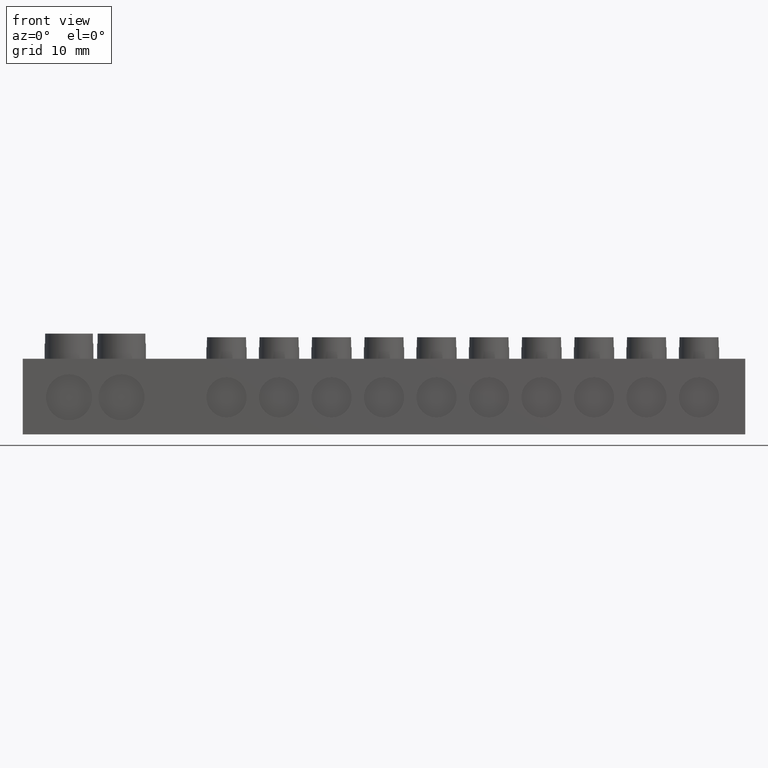
[diagram: clean part render]
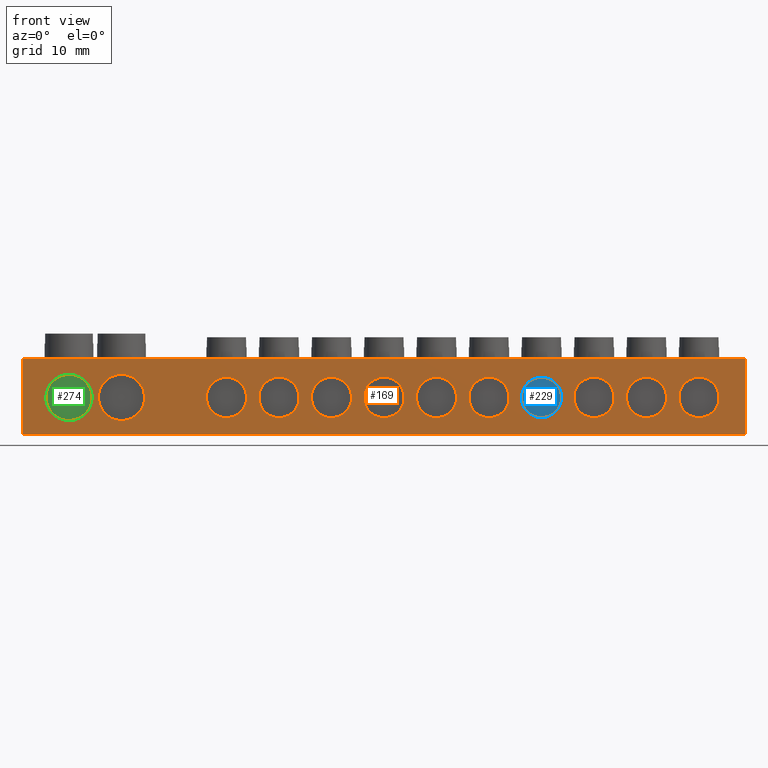
[diagram: same view with three faces highlighted in distinct colors, each labeled with its STEP entity id]
A machine part, front view with three faces highlighted in distinct colors.
Their STEP definitions:

[orange] entity #169 — the highlighted planar face has unit normal (0, 1, 0).
#3 = EDGE_CURVE ( 'NONE', #3433, #3369, #8008, .T. ) ;
#8 = EDGE_CURVE ( 'NONE', #3347, #3352, #8016, .T. ) ;
#15 = EDGE_CURVE ( 'NONE', #3898, #3873, #8014, .T. ) ;
#19 = EDGE_CURVE ( 'NONE', #7013, #7672, #523, .T. ) ;
#28 = EDGE_CURVE ( 'NONE', #7020, #7686, #548, .T. ) ;
#29 = EDGE_CURVE ( 'NONE', #3917, #3869, #7487, .T. ) ;
#32 = EDGE_CURVE ( 'NONE', #7672, #7020, #571, .T. ) ;
#37 = EDGE_CURVE ( 'NONE', #7686, #7013, #561, .T. ) ;
#40 = EDGE_CURVE ( 'NONE', #3416, #3361, #7490, .T. ) ;
#52 = EDGE_CURVE ( 'NONE', #3364, #3394, #7514, .T. ) ;
#53 = EDGE_CURVE ( 'NONE', #3349, #3424, #7479, .T. ) ;
#56 = EDGE_CURVE ( 'NONE', #3367, #3402, #7544, .T. ) ;
#62 = EDGE_CURVE ( 'NONE', #3396, #3415, #7571, .T. ) ;
#68 = EDGE_CURVE ( 'NONE', #3384, #3365, #7622, .T. ) ;
#80 = EDGE_CURVE ( 'NONE', #3393, #3440, #7615, .T. ) ;
#103 = EDGE_CURVE ( 'NONE', #3403, #3463, #7700, .T. ) ;
#169 = ADVANCED_FACE ( 'NONE', ( #1156, #1146, #1134, #1137, #1140, #1157, #1130, #1135, #1117, #1127, #1142, #1145, #1147 ), #1149, .F. ) ;
#439 = EDGE_LOOP ( 'NONE', ( #3555, #3558 ) ) ;
#440 = EDGE_LOOP ( 'NONE', ( #3551, #3538, #3537, #3554 ) ) ;
#457 = EDGE_LOOP ( 'NONE', ( #3592, #3591 ) ) ;
#475 = DIRECTION ( 'NONE',  ( 0.0000000000000000000, 0.0000000000000000000, -1.000000000000000000 ) ) ;
#476 = DIRECTION ( 'NONE',  ( 0.0000000000000000000, 0.0000000000000000000, -1.000000000000000000 ) ) ;
#480 = DIRECTION ( 'NONE',  ( -0.0000000000000000000, -1.000000000000000000, -0.0000000000000000000 ) ) ;
#485 = DIRECTION ( 'NONE',  ( -0.0000000000000000000, -1.000000000000000000, -0.0000000000000000000 ) ) ;
#492 = CARTESIAN_POINT ( 'NONE',  ( 5.275000000000000400, 0.0000000000000000000, 4.399999999999999500 ) ) ;
#495 = DIRECTION ( 'NONE',  ( -0.0000000000000000000, -1.000000000000000000, -0.0000000000000000000 ) ) ;
#496 = DIRECTION ( 'NONE',  ( 0.0000000000000000000, 0.0000000000000000000, -1.000000000000000000 ) ) ;
#502 = CARTESIAN_POINT ( 'NONE',  ( 74.02500000000000600, 0.0000000000000000000, 4.399999999999984400 ) ) ;
#507 = CARTESIAN_POINT ( 'NONE',  ( 67.77500000000000600, 0.0000000000000000000, 4.399999999999970200 ) ) ;
#511 = DIRECTION ( 'NONE',  ( 0.0000000000000000000, 0.0000000000000000000, -1.000000000000000000 ) ) ;
#514 = DIRECTION ( 'NONE',  ( 0.0000000000000000000, 0.0000000000000000000, -1.000000000000000000 ) ) ;
#515 = DIRECTION ( 'NONE',  ( -0.0000000000000000000, -1.000000000000000000, -0.0000000000000000000 ) ) ;
#516 = CARTESIAN_POINT ( 'NONE',  ( 11.52500000000000000, 0.0000000000000000000, 4.399999999999999500 ) ) ;
#523 = LINE ( 'NONE', #530, #8013 ) ;
#530 = CARTESIAN_POINT ( 'NONE',  ( -0.2250000000000000100, 0.0000000000000000000, 9.000000000000001800 ) ) ;
#533 = DIRECTION ( 'NONE',  ( 0.0000000000000000000, 0.0000000000000000000, 1.000000000000000000 ) ) ;
#548 = LINE ( 'NONE', #550, #7481 ) ;
#550 = CARTESIAN_POINT ( 'NONE',  ( 85.77500000000000600, 0.0000000000000000000, 9.000000000000001800 ) ) ;
#557 = CARTESIAN_POINT ( 'NONE',  ( 80.27500000000002000, 0.0000000000000000000, 4.399999999999999500 ) ) ;
#559 = CARTESIAN_POINT ( 'NONE',  ( 0.0000000000000000000, 0.0000000000000000000, 9.000000000000001800 ) ) ;
#560 = CARTESIAN_POINT ( 'NONE',  ( 0.0000000000000000000, 0.0000000000000000000, 0.0000000000000000000 ) ) ;
#561 = LINE ( 'NONE', #560, #7498 ) ;
#571 = LINE ( 'NONE', #559, #7477 ) ;
#577 = DIRECTION ( 'NONE',  ( 0.0000000000000000000, 0.0000000000000000000, -1.000000000000000000 ) ) ;
#585 = DIRECTION ( 'NONE',  ( -1.000000000000000000, 0.0000000000000000000, -0.0000000000000000000 ) ) ;
#587 = DIRECTION ( 'NONE',  ( 1.000000000000000000, 0.0000000000000000000, -0.0000000000000000000 ) ) ;
#593 = DIRECTION ( 'NONE',  ( -0.0000000000000000000, -1.000000000000000000, -0.0000000000000000000 ) ) ;
#600 = DIRECTION ( 'NONE',  ( -0.0000000000000000000, -1.000000000000000000, -0.0000000000000000000 ) ) ;
#605 = DIRECTION ( 'NONE',  ( 0.0000000000000000000, 0.0000000000000000000, -1.000000000000000000 ) ) ;
#607 = CARTESIAN_POINT ( 'NONE',  ( 30.27500000000000900, 0.0000000000000000000, 4.399999999999883100 ) ) ;
#608 = DIRECTION ( 'NONE',  ( -0.0000000000000000000, -1.000000000000000000, -0.0000000000000000000 ) ) ;
#610 = CARTESIAN_POINT ( 'NONE',  ( 36.52500000000000600, 0.0000000000000000000, 4.399999999999898200 ) ) ;
#631 = DIRECTION ( 'NONE',  ( 0.0000000000000000000, 0.0000000000000000000, -1.000000000000000000 ) ) ;
#637 = DIRECTION ( 'NONE',  ( -0.0000000000000000000, -1.000000000000000000, -0.0000000000000000000 ) ) ;
#643 = DIRECTION ( 'NONE',  ( 0.0000000000000000000, 0.0000000000000000000, -1.000000000000000000 ) ) ;
#649 = CARTESIAN_POINT ( 'NONE',  ( 49.02500000000000600, 0.0000000000000000000, 4.399999999999926600 ) ) ;
#653 = CARTESIAN_POINT ( 'NONE',  ( 42.77500000000000600, 0.0000000000000000000, 4.399999999999911500 ) ) ;
#655 = DIRECTION ( 'NONE',  ( -0.0000000000000000000, -1.000000000000000000, -0.0000000000000000000 ) ) ;
#657 = DIRECTION ( 'NONE',  ( 0.0000000000000000000, 0.0000000000000000000, -1.000000000000000000 ) ) ;
#666 = CARTESIAN_POINT ( 'NONE',  ( 55.27500000000000600, 0.0000000000000000000, 4.399999999999940800 ) ) ;
#683 = DIRECTION ( 'NONE',  ( 0.0000000000000000000, 0.0000000000000000000, -1.000000000000000000 ) ) ;
#700 = DIRECTION ( 'NONE',  ( -0.0000000000000000000, -1.000000000000000000, -0.0000000000000000000 ) ) ;
#729 = DIRECTION ( 'NONE',  ( 0.0000000000000000000, 0.0000000000000000000, -1.000000000000000000 ) ) ;
#731 = DIRECTION ( 'NONE',  ( -0.0000000000000000000, -1.000000000000000000, -0.0000000000000000000 ) ) ;
#744 = CARTESIAN_POINT ( 'NONE',  ( 61.52500000000001300, 0.0000000000000000000, 4.399999999999955900 ) ) ;
#811 = DIRECTION ( 'NONE',  ( 0.0000000000000000000, 0.0000000000000000000, -1.000000000000000000 ) ) ;
#814 = CARTESIAN_POINT ( 'NONE',  ( 24.02500000000001300, 0.0000000000000000000, 4.399999999999868000 ) ) ;
#816 = DIRECTION ( 'NONE',  ( -0.0000000000000000000, -1.000000000000000000, -0.0000000000000000000 ) ) ;
#1111 = DIRECTION ( 'NONE',  ( 0.0000000000000000000, 1.000000000000000000, 0.0000000000000000000 ) ) ;
#1117 = FACE_BOUND ( 'NONE', #1477, .T. ) ;
#1127 = FACE_BOUND ( 'NONE', #1427, .T. ) ;
#1130 = FACE_BOUND ( 'NONE', #1461, .T. ) ;
#1134 = FACE_BOUND ( 'NONE', #1451, .T. ) ;
#1135 = FACE_BOUND ( 'NONE', #1473, .T. ) ;
#1137 = FACE_BOUND ( 'NONE', #1462, .T. ) ;
#1140 = FACE_BOUND ( 'NONE', #1428, .T. ) ;
#1142 = FACE_BOUND ( 'NONE', #1455, .T. ) ;
#1145 = FACE_BOUND ( 'NONE', #1466, .T. ) ;
#1146 = FACE_BOUND ( 'NONE', #457, .T. ) ;
#1147 = FACE_BOUND ( 'NONE', #1454, .T. ) ;
#1149 = PLANE ( 'NONE',  #7775 ) ;
#1150 = CARTESIAN_POINT ( 'NONE',  ( 0.0000000000000000000, 0.0000000000000000000, 9.000000000000001800 ) ) ;
#1155 = DIRECTION ( 'NONE',  ( 0.0000000000000000000, -0.0000000000000000000, 1.000000000000000000 ) ) ;
#1156 = FACE_OUTER_BOUND ( 'NONE', #440, .T. ) ;
#1157 = FACE_BOUND ( 'NONE', #439, .T. ) ;
#1427 = EDGE_LOOP ( 'NONE', ( #3568, #3426 ) ) ;
#1428 = EDGE_LOOP ( 'NONE', ( #3562, #3544 ) ) ;
#1451 = EDGE_LOOP ( 'NONE', ( #3598, #3553 ) ) ;
#1454 = EDGE_LOOP ( 'NONE', ( #3406, #3442 ) ) ;
#1455 = EDGE_LOOP ( 'NONE', ( #3427, #3428 ) ) ;
#1461 = EDGE_LOOP ( 'NONE', ( #3596, #3593 ) ) ;
#1462 = EDGE_LOOP ( 'NONE', ( #3580, #3543 ) ) ;
#1466 = EDGE_LOOP ( 'NONE', ( #3409, #3444 ) ) ;
#1473 = EDGE_LOOP ( 'NONE', ( #3566, #3599 ) ) ;
#1477 = EDGE_LOOP ( 'NONE', ( #3570, #3539 ) ) ;
#2038 = CARTESIAN_POINT ( 'NONE',  ( 85.77500000000000600, 0.0000000000000000000, 9.000000000000001800 ) ) ;
#2232 = DIRECTION ( 'NONE',  ( -0.0000000000000000000, -1.000000000000000000, -0.0000000000000000000 ) ) ;
#2233 = DIRECTION ( 'NONE',  ( 0.0000000000000000000, 0.0000000000000000000, -1.000000000000000000 ) ) ;
#2246 = CARTESIAN_POINT ( 'NONE',  ( 36.52500000000000600, 0.0000000000000000000, 4.399999999999898200 ) ) ;
#2249 = DIRECTION ( 'NONE',  ( -0.0000000000000000000, -1.000000000000000000, -0.0000000000000000000 ) ) ;
#2250 = CARTESIAN_POINT ( 'NONE',  ( 5.275000000000000400, 0.0000000000000000000, 4.399999999999999500 ) ) ;
#2254 = DIRECTION ( 'NONE',  ( 0.0000000000000000000, 0.0000000000000000000, -1.000000000000000000 ) ) ;
#2256 = DIRECTION ( 'NONE',  ( -0.0000000000000000000, -1.000000000000000000, -0.0000000000000000000 ) ) ;
#2257 = CARTESIAN_POINT ( 'NONE',  ( 42.77500000000000600, 0.0000000000000000000, 4.399999999999911500 ) ) ;
#2258 = DIRECTION ( 'NONE',  ( 0.0000000000000000000, 0.0000000000000000000, -1.000000000000000000 ) ) ;
#2289 = DIRECTION ( 'NONE',  ( -0.0000000000000000000, -1.000000000000000000, -0.0000000000000000000 ) ) ;
#2290 = CARTESIAN_POINT ( 'NONE',  ( 74.02500000000000600, 0.0000000000000000000, 4.399999999999984400 ) ) ;
#2293 = DIRECTION ( 'NONE',  ( 0.0000000000000000000, 0.0000000000000000000, -1.000000000000000000 ) ) ;
#2299 = CARTESIAN_POINT ( 'NONE',  ( 49.02500000000000600, 0.0000000000000000000, 4.399999999999926600 ) ) ;
#2305 = DIRECTION ( 'NONE',  ( 0.0000000000000000000, 0.0000000000000000000, -1.000000000000000000 ) ) ;
#2311 = CARTESIAN_POINT ( 'NONE',  ( 67.77500000000000600, 0.0000000000000000000, 4.399999999999970200 ) ) ;
#2312 = DIRECTION ( 'NONE',  ( 0.0000000000000000000, 0.0000000000000000000, -1.000000000000000000 ) ) ;
#2318 = DIRECTION ( 'NONE',  ( -0.0000000000000000000, -1.000000000000000000, -0.0000000000000000000 ) ) ;
#2319 = CARTESIAN_POINT ( 'NONE',  ( -0.2250000000000000100, 0.0000000000000000000, 0.0000000000000000000 ) ) ;
#2323 = CARTESIAN_POINT ( 'NONE',  ( 80.27500000000002000, 0.0000000000000000000, 4.399999999999999500 ) ) ;
#2324 = DIRECTION ( 'NONE',  ( 0.0000000000000000000, 0.0000000000000000000, -1.000000000000000000 ) ) ;
#2325 = DIRECTION ( 'NONE',  ( -0.0000000000000000000, -1.000000000000000000, -0.0000000000000000000 ) ) ;
#2329 = DIRECTION ( 'NONE',  ( -0.0000000000000000000, -1.000000000000000000, -0.0000000000000000000 ) ) ;
#2384 = AXIS2_PLACEMENT_3D ( 'NONE', #2246, #2249, #2233 ) ;
#2387 = CIRCLE ( 'NONE', #2426, 2.400000000000000800 ) ;
#2389 = AXIS2_PLACEMENT_3D ( 'NONE', #2299, #2289, #2293 ) ;
#2390 = AXIS2_PLACEMENT_3D ( 'NONE', #2250, #2232, #2254 ) ;
#2397 = CIRCLE ( 'NONE', #2390, 2.749999999999998200 ) ;
#2404 = CIRCLE ( 'NONE', #2384, 2.400000000000000800 ) ;
#2409 = CIRCLE ( 'NONE', #2423, 2.400000000000000800 ) ;
#2410 = CIRCLE ( 'NONE', #2418, 2.400000000000000800 ) ;
#2411 = AXIS2_PLACEMENT_3D ( 'NONE', #2290, #2318, #2305 ) ;
#2414 = CIRCLE ( 'NONE', #2389, 2.400000000000000800 ) ;
#2418 = AXIS2_PLACEMENT_3D ( 'NONE', #2257, #2256, #2258 ) ;
#2423 = AXIS2_PLACEMENT_3D ( 'NONE', #2323, #2329, #2324 ) ;
#2426 = AXIS2_PLACEMENT_3D ( 'NONE', #2311, #2325, #2312 ) ;
#2428 = CIRCLE ( 'NONE', #2411, 2.400000000000000800 ) ;
#2815 = CIRCLE ( 'NONE', #2844, 2.400000000000000800 ) ;
#2824 = CIRCLE ( 'NONE', #2870, 2.749999999999998200 ) ;
#2826 = CIRCLE ( 'NONE', #2852, 2.400000000000000800 ) ;
#2844 = AXIS2_PLACEMENT_3D ( 'NONE', #5308, #5280, #5311 ) ;
#2852 = AXIS2_PLACEMENT_3D ( 'NONE', #6171, #6189, #6162 ) ;
#2870 = AXIS2_PLACEMENT_3D ( 'NONE', #5299, #5305, #5291 ) ;
#2894 = CIRCLE ( 'NONE', #2914, 2.400000000000007900 ) ;
#2896 = CIRCLE ( 'NONE', #2900, 2.400000000000000800 ) ;
#2900 = AXIS2_PLACEMENT_3D ( 'NONE', #6234, #6201, #6225 ) ;
#2914 = AXIS2_PLACEMENT_3D ( 'NONE', #6191, #6228, #6197 ) ;
#3006 = EDGE_CURVE ( 'NONE', #3463, #3403, #2815, .T. ) ;
#3007 = EDGE_CURVE ( 'NONE', #3869, #3917, #2824, .T. ) ;
#3041 = EDGE_CURVE ( 'NONE', #3394, #3364, #2826, .T. ) ;
#3051 = EDGE_CURVE ( 'NONE', #3365, #3384, #2896, .T. ) ;
#3052 = EDGE_CURVE ( 'NONE', #3440, #3393, #2894, .T. ) ;
#3347 = VERTEX_POINT ( 'NONE', #6355 ) ;
#3349 = VERTEX_POINT ( 'NONE', #6373 ) ;
#3352 = VERTEX_POINT ( 'NONE', #6372 ) ;
#3361 = VERTEX_POINT ( 'NONE', #6350 ) ;
#3364 = VERTEX_POINT ( 'NONE', #6345 ) ;
#3365 = VERTEX_POINT ( 'NONE', #6333 ) ;
#3367 = VERTEX_POINT ( 'NONE', #6369 ) ;
#3369 = VERTEX_POINT ( 'NONE', #6334 ) ;
#3384 = VERTEX_POINT ( 'NONE', #6347 ) ;
#3393 = VERTEX_POINT ( 'NONE', #6357 ) ;
#3394 = VERTEX_POINT ( 'NONE', #6367 ) ;
#3396 = VERTEX_POINT ( 'NONE', #6368 ) ;
#3402 = VERTEX_POINT ( 'NONE', #6387 ) ;
#3403 = VERTEX_POINT ( 'NONE', #6442 ) ;
#3406 = ORIENTED_EDGE ( 'NONE', *, *, #103, .F. ) ;
#3409 = ORIENTED_EDGE ( 'NONE', *, *, #52, .F. ) ;
#3415 = VERTEX_POINT ( 'NONE', #6446 ) ;
#3416 = VERTEX_POINT ( 'NONE', #6448 ) ;
#3424 = VERTEX_POINT ( 'NONE', #6425 ) ;
#3426 = ORIENTED_EDGE ( 'NONE', *, *, #6128, .F. ) ;
#3427 = ORIENTED_EDGE ( 'NONE', *, *, #53, .F. ) ;
#3428 = ORIENTED_EDGE ( 'NONE', *, *, #6125, .F. ) ;
#3433 = VERTEX_POINT ( 'NONE', #6412 ) ;
#3440 = VERTEX_POINT ( 'NONE', #6402 ) ;
#3442 = ORIENTED_EDGE ( 'NONE', *, *, #3006, .F. ) ;
#3444 = ORIENTED_EDGE ( 'NONE', *, *, #3041, .F. ) ;
#3463 = VERTEX_POINT ( 'NONE', #6434 ) ;
#3537 = ORIENTED_EDGE ( 'NONE', *, *, #19, .F. ) ;
#3538 = ORIENTED_EDGE ( 'NONE', *, *, #32, .F. ) ;
#3539 = ORIENTED_EDGE ( 'NONE', *, *, #6142, .F. ) ;
#3543 = ORIENTED_EDGE ( 'NONE', *, *, #6139, .F. ) ;
#3544 = ORIENTED_EDGE ( 'NONE', *, *, #6140, .F. ) ;
#3551 = ORIENTED_EDGE ( 'NONE', *, *, #28, .F. ) ;
#3553 = ORIENTED_EDGE ( 'NONE', *, *, #3007, .F. ) ;
#3554 = ORIENTED_EDGE ( 'NONE', *, *, #37, .F. ) ;
#3555 = ORIENTED_EDGE ( 'NONE', *, *, #3, .F. ) ;
#3558 = ORIENTED_EDGE ( 'NONE', *, *, #6143, .F. ) ;
#3562 = ORIENTED_EDGE ( 'NONE', *, *, #8, .F. ) ;
#3566 = ORIENTED_EDGE ( 'NONE', *, *, #68, .F. ) ;
#3568 = ORIENTED_EDGE ( 'NONE', *, *, #56, .F. ) ;
#3570 = ORIENTED_EDGE ( 'NONE', *, *, #62, .F. ) ;
#3580 = ORIENTED_EDGE ( 'NONE', *, *, #40, .F. ) ;
#3591 = ORIENTED_EDGE ( 'NONE', *, *, #6123, .F. ) ;
#3592 = ORIENTED_EDGE ( 'NONE', *, *, #15, .F. ) ;
#3593 = ORIENTED_EDGE ( 'NONE', *, *, #3052, .F. ) ;
#3596 = ORIENTED_EDGE ( 'NONE', *, *, #80, .F. ) ;
#3598 = ORIENTED_EDGE ( 'NONE', *, *, #29, .F. ) ;
#3599 = ORIENTED_EDGE ( 'NONE', *, *, #3051, .F. ) ;
#3869 = VERTEX_POINT ( 'NONE', #6503 ) ;
#3873 = VERTEX_POINT ( 'NONE', #6479 ) ;
#3898 = VERTEX_POINT ( 'NONE', #6421 ) ;
#3917 = VERTEX_POINT ( 'NONE', #6472 ) ;
#5280 = DIRECTION ( 'NONE',  ( -0.0000000000000000000, -1.000000000000000000, -0.0000000000000000000 ) ) ;
#5291 = DIRECTION ( 'NONE',  ( 0.0000000000000000000, 0.0000000000000000000, -1.000000000000000000 ) ) ;
#5299 = CARTESIAN_POINT ( 'NONE',  ( 11.52500000000000000, 0.0000000000000000000, 4.399999999999999500 ) ) ;
#5305 = DIRECTION ( 'NONE',  ( -0.0000000000000000000, -1.000000000000000000, -0.0000000000000000000 ) ) ;
#5308 = CARTESIAN_POINT ( 'NONE',  ( 24.02500000000001300, 0.0000000000000000000, 4.399999999999868000 ) ) ;
#5311 = DIRECTION ( 'NONE',  ( 0.0000000000000000000, 0.0000000000000000000, -1.000000000000000000 ) ) ;
#5827 = CARTESIAN_POINT ( 'NONE',  ( 85.77500000000000600, 0.0000000000000000000, 0.0000000000000000000 ) ) ;
#5829 = CARTESIAN_POINT ( 'NONE',  ( -0.2250000000000000100, 0.0000000000000000000, 9.000000000000001800 ) ) ;
#6123 = EDGE_CURVE ( 'NONE', #3873, #3898, #2397, .T. ) ;
#6125 = EDGE_CURVE ( 'NONE', #3424, #3349, #2404, .T. ) ;
#6128 = EDGE_CURVE ( 'NONE', #3402, #3367, #2410, .T. ) ;
#6139 = EDGE_CURVE ( 'NONE', #3361, #3416, #2409, .T. ) ;
#6140 = EDGE_CURVE ( 'NONE', #3352, #3347, #2428, .T. ) ;
#6142 = EDGE_CURVE ( 'NONE', #3415, #3396, #2414, .T. ) ;
#6143 = EDGE_CURVE ( 'NONE', #3369, #3433, #2387, .T. ) ;
#6162 = DIRECTION ( 'NONE',  ( 0.0000000000000000000, 0.0000000000000000000, -1.000000000000000000 ) ) ;
#6171 = CARTESIAN_POINT ( 'NONE',  ( 30.27500000000000900, 0.0000000000000000000, 4.399999999999883100 ) ) ;
#6189 = DIRECTION ( 'NONE',  ( -0.0000000000000000000, -1.000000000000000000, -0.0000000000000000000 ) ) ;
#6191 = CARTESIAN_POINT ( 'NONE',  ( 61.52500000000001300, 0.0000000000000000000, 4.399999999999955900 ) ) ;
#6197 = DIRECTION ( 'NONE',  ( 0.0000000000000000000, 0.0000000000000000000, -1.000000000000000000 ) ) ;
#6201 = DIRECTION ( 'NONE',  ( -0.0000000000000000000, -1.000000000000000000, -0.0000000000000000000 ) ) ;
#6225 = DIRECTION ( 'NONE',  ( 0.0000000000000000000, 0.0000000000000000000, -1.000000000000000000 ) ) ;
#6228 = DIRECTION ( 'NONE',  ( -0.0000000000000000000, -1.000000000000000000, -0.0000000000000000000 ) ) ;
#6234 = CARTESIAN_POINT ( 'NONE',  ( 55.27500000000000600, 0.0000000000000000000, 4.399999999999940800 ) ) ;
#6333 = CARTESIAN_POINT ( 'NONE',  ( 55.27500000000000600, 0.0000000000000000000, 6.799999999999941200 ) ) ;
#6334 = CARTESIAN_POINT ( 'NONE',  ( 67.77500000000000600, 0.0000000000000000000, 6.799999999999971400 ) ) ;
#6345 = CARTESIAN_POINT ( 'NONE',  ( 30.27500000000000900, 0.0000000000000000000, 1.999999999999882500 ) ) ;
#6347 = CARTESIAN_POINT ( 'NONE',  ( 55.27500000000000600, 0.0000000000000000000, 1.999999999999940700 ) ) ;
#6350 = CARTESIAN_POINT ( 'NONE',  ( 80.27500000000002000, 0.0000000000000000000, 6.800000000000000700 ) ) ;
#6355 = CARTESIAN_POINT ( 'NONE',  ( 74.02500000000000600, 0.0000000000000000000, 1.999999999999984000 ) ) ;
#6357 = CARTESIAN_POINT ( 'NONE',  ( 61.52500000000001300, 0.0000000000000000000, 1.999999999999948000 ) ) ;
#6367 = CARTESIAN_POINT ( 'NONE',  ( 30.27500000000000900, 0.0000000000000000000, 6.799999999999884400 ) ) ;
#6368 = CARTESIAN_POINT ( 'NONE',  ( 49.02500000000000600, 0.0000000000000000000, 1.999999999999925800 ) ) ;
#6369 = CARTESIAN_POINT ( 'NONE',  ( 42.77500000000000600, 0.0000000000000000000, 1.999999999999911200 ) ) ;
#6372 = CARTESIAN_POINT ( 'NONE',  ( 74.02500000000000600, 0.0000000000000000000, 6.799999999999984700 ) ) ;
#6373 = CARTESIAN_POINT ( 'NONE',  ( 36.52500000000000600, 0.0000000000000000000, 1.999999999999897200 ) ) ;
#6387 = CARTESIAN_POINT ( 'NONE',  ( 42.77500000000000600, 0.0000000000000000000, 6.799999999999911900 ) ) ;
#6402 = CARTESIAN_POINT ( 'NONE',  ( 61.52500000000001300, 0.0000000000000000000, 6.799999999999964300 ) ) ;
#6412 = CARTESIAN_POINT ( 'NONE',  ( 67.77500000000000600, 0.0000000000000000000, 1.999999999999969400 ) ) ;
#6421 = CARTESIAN_POINT ( 'NONE',  ( 5.275000000000000400, 0.0000000000000000000, 1.650000000000001200 ) ) ;
#6425 = CARTESIAN_POINT ( 'NONE',  ( 36.52500000000000600, 0.0000000000000000000, 6.799999999999898600 ) ) ;
#6434 = CARTESIAN_POINT ( 'NONE',  ( 24.02500000000001300, 0.0000000000000000000, 6.799999999999868400 ) ) ;
#6442 = CARTESIAN_POINT ( 'NONE',  ( 24.02500000000001300, 0.0000000000000000000, 1.999999999999867700 ) ) ;
#6446 = CARTESIAN_POINT ( 'NONE',  ( 49.02500000000000600, 0.0000000000000000000, 6.799999999999927900 ) ) ;
#6448 = CARTESIAN_POINT ( 'NONE',  ( 80.27500000000002000, 0.0000000000000000000, 1.999999999999998700 ) ) ;
#6472 = CARTESIAN_POINT ( 'NONE',  ( 11.52500000000000000, 0.0000000000000000000, 1.650000000000001200 ) ) ;
#6479 = CARTESIAN_POINT ( 'NONE',  ( 5.275000000000000400, 0.0000000000000000000, 7.149999999999997700 ) ) ;
#6503 = CARTESIAN_POINT ( 'NONE',  ( 11.52500000000000000, 0.0000000000000000000, 7.149999999999997700 ) ) ;
#7013 = VERTEX_POINT ( 'NONE', #2319 ) ;
#7020 = VERTEX_POINT ( 'NONE', #2038 ) ;
#7477 = VECTOR ( 'NONE', #587, 1000.000000000000000 ) ;
#7479 = CIRCLE ( 'NONE', #7501, 2.400000000000000800 ) ;
#7481 = VECTOR ( 'NONE', #514, 1000.000000000000000 ) ;
#7487 = CIRCLE ( 'NONE', #7506, 2.749999999999998200 ) ;
#7490 = CIRCLE ( 'NONE', #7546, 2.400000000000000800 ) ;
#7497 = AXIS2_PLACEMENT_3D ( 'NONE', #653, #655, #643 ) ;
#7498 = VECTOR ( 'NONE', #585, 1000.000000000000000 ) ;
#7501 = AXIS2_PLACEMENT_3D ( 'NONE', #610, #600, #605 ) ;
#7504 = AXIS2_PLACEMENT_3D ( 'NONE', #607, #608, #631 ) ;
#7506 = AXIS2_PLACEMENT_3D ( 'NONE', #516, #515, #511 ) ;
#7514 = CIRCLE ( 'NONE', #7504, 2.400000000000000800 ) ;
#7544 = CIRCLE ( 'NONE', #7497, 2.400000000000000800 ) ;
#7546 = AXIS2_PLACEMENT_3D ( 'NONE', #557, #593, #577 ) ;
#7571 = CIRCLE ( 'NONE', #7638, 2.400000000000000800 ) ;
#7585 = AXIS2_PLACEMENT_3D ( 'NONE', #744, #731, #729 ) ;
#7604 = AXIS2_PLACEMENT_3D ( 'NONE', #666, #700, #683 ) ;
#7615 = CIRCLE ( 'NONE', #7585, 2.400000000000007900 ) ;
#7622 = CIRCLE ( 'NONE', #7604, 2.400000000000000800 ) ;
#7638 = AXIS2_PLACEMENT_3D ( 'NONE', #649, #637, #657 ) ;
#7672 = VERTEX_POINT ( 'NONE', #5829 ) ;
#7686 = VERTEX_POINT ( 'NONE', #5827 ) ;
#7700 = CIRCLE ( 'NONE', #7746, 2.400000000000000800 ) ;
#7746 = AXIS2_PLACEMENT_3D ( 'NONE', #814, #816, #811 ) ;
#7775 = AXIS2_PLACEMENT_3D ( 'NONE', #1150, #1111, #1155 ) ;
#8005 = AXIS2_PLACEMENT_3D ( 'NONE', #507, #485, #476 ) ;
#8008 = CIRCLE ( 'NONE', #8005, 2.400000000000000800 ) ;
#8012 = AXIS2_PLACEMENT_3D ( 'NONE', #492, #495, #475 ) ;
#8013 = VECTOR ( 'NONE', #533, 1000.000000000000000 ) ;
#8014 = CIRCLE ( 'NONE', #8012, 2.749999999999998200 ) ;
#8016 = CIRCLE ( 'NONE', #8031, 2.400000000000000800 ) ;
#8031 = AXIS2_PLACEMENT_3D ( 'NONE', #502, #480, #496 ) ;

[blue] entity #229 — the highlighted planar face has unit normal (0, -1, 0).
#72 = EDGE_CURVE ( 'NONE', #3404, #3391, #7609, .T. ) ;
#229 = ADVANCED_FACE ( 'NONE', ( #5390 ), #5393, .T. ) ;
#680 = DIRECTION ( 'NONE',  ( 0.0000000000000000000, 0.0000000000000000000, -1.000000000000000000 ) ) ;
#681 = DIRECTION ( 'NONE',  ( -0.0000000000000000000, -1.000000000000000000, -0.0000000000000000000 ) ) ;
#699 = CARTESIAN_POINT ( 'NONE',  ( 61.52500000000001300, 0.5000000000000004400, 4.399999999999955900 ) ) ;
#1434 = EDGE_LOOP ( 'NONE', ( #3368, #3181 ) ) ;
#2272 = CARTESIAN_POINT ( 'NONE',  ( 61.52500000000001300, 0.5000000000000004400, 4.399999999999955900 ) ) ;
#2273 = DIRECTION ( 'NONE',  ( -0.0000000000000000000, -1.000000000000000000, -0.0000000000000000000 ) ) ;
#2274 = DIRECTION ( 'NONE',  ( 0.0000000000000000000, 0.0000000000000000000, -1.000000000000000000 ) ) ;
#2392 = CIRCLE ( 'NONE', #2396, 2.400000000000007900 ) ;
#2396 = AXIS2_PLACEMENT_3D ( 'NONE', #2272, #2273, #2274 ) ;
#3181 = ORIENTED_EDGE ( 'NONE', *, *, #6134, .T. ) ;
#3368 = ORIENTED_EDGE ( 'NONE', *, *, #72, .T. ) ;
#3391 = VERTEX_POINT ( 'NONE', #6361 ) ;
#3404 = VERTEX_POINT ( 'NONE', #6353 ) ;
#5381 = DIRECTION ( 'NONE',  ( 0.0000000000000000000, -1.000000000000000000, 0.0000000000000000000 ) ) ;
#5386 = DIRECTION ( 'NONE',  ( 0.0000000000000000000, -0.0000000000000000000, -1.000000000000000000 ) ) ;
#5390 = FACE_OUTER_BOUND ( 'NONE', #1434, .T. ) ;
#5393 = PLANE ( 'NONE',  #7826 ) ;
#5394 = CARTESIAN_POINT ( 'NONE',  ( 0.5000000000000000000, 0.5000000000000000000, 0.5000000000000000000 ) ) ;
#6134 = EDGE_CURVE ( 'NONE', #3391, #3404, #2392, .T. ) ;
#6353 = CARTESIAN_POINT ( 'NONE',  ( 61.52500000000001300, 0.5000000000000004400, 1.999999999999948000 ) ) ;
#6361 = CARTESIAN_POINT ( 'NONE',  ( 61.52500000000001300, 0.5000000000000004400, 6.799999999999964300 ) ) ;
#7609 = CIRCLE ( 'NONE', #7635, 2.400000000000007900 ) ;
#7635 = AXIS2_PLACEMENT_3D ( 'NONE', #699, #681, #680 ) ;
#7826 = AXIS2_PLACEMENT_3D ( 'NONE', #5394, #5381, #5386 ) ;

[green] entity #274 — the highlighted planar face has unit normal (0, -1, 0).
#95 = EDGE_CURVE ( 'NONE', #3907, #3918, #7659, .T. ) ;
#274 = ADVANCED_FACE ( 'NONE', ( #5621 ), #5612, .T. ) ;
#767 = CARTESIAN_POINT ( 'NONE',  ( 5.275000000000000400, 0.5000000000000004400, 4.399999999999999500 ) ) ;
#769 = DIRECTION ( 'NONE',  ( -0.0000000000000000000, -1.000000000000000000, -0.0000000000000000000 ) ) ;
#798 = DIRECTION ( 'NONE',  ( 0.0000000000000000000, 0.0000000000000000000, -1.000000000000000000 ) ) ;
#2291 = CARTESIAN_POINT ( 'NONE',  ( 5.275000000000000400, 0.5000000000000004400, 4.399999999999999500 ) ) ;
#2309 = DIRECTION ( 'NONE',  ( -0.0000000000000000000, -1.000000000000000000, -0.0000000000000000000 ) ) ;
#2333 = DIRECTION ( 'NONE',  ( 0.0000000000000000000, 0.0000000000000000000, -1.000000000000000000 ) ) ;
#2407 = CIRCLE ( 'NONE', #2424, 2.749999999999998200 ) ;
#2424 = AXIS2_PLACEMENT_3D ( 'NONE', #2291, #2309, #2333 ) ;
#3209 = ORIENTED_EDGE ( 'NONE', *, *, #95, .T. ) ;
#3212 = ORIENTED_EDGE ( 'NONE', *, *, #6141, .T. ) ;
#3907 = VERTEX_POINT ( 'NONE', #6450 ) ;
#3918 = VERTEX_POINT ( 'NONE', #6467 ) ;
#4214 = EDGE_LOOP ( 'NONE', ( #3209, #3212 ) ) ;
#5600 = CARTESIAN_POINT ( 'NONE',  ( 0.5000000000000000000, 0.5000000000000000000, 0.5000000000000000000 ) ) ;
#5612 = PLANE ( 'NONE',  #7896 ) ;
#5614 = DIRECTION ( 'NONE',  ( 0.0000000000000000000, -0.0000000000000000000, -1.000000000000000000 ) ) ;
#5615 = DIRECTION ( 'NONE',  ( 0.0000000000000000000, -1.000000000000000000, 0.0000000000000000000 ) ) ;
#5621 = FACE_OUTER_BOUND ( 'NONE', #4214, .T. ) ;
#6141 = EDGE_CURVE ( 'NONE', #3918, #3907, #2407, .T. ) ;
#6450 = CARTESIAN_POINT ( 'NONE',  ( 5.275000000000000400, 0.5000000000000004400, 1.650000000000001200 ) ) ;
#6467 = CARTESIAN_POINT ( 'NONE',  ( 5.275000000000000400, 0.5000000000000004400, 7.149999999999997700 ) ) ;
#7554 = AXIS2_PLACEMENT_3D ( 'NONE', #767, #769, #798 ) ;
#7659 = CIRCLE ( 'NONE', #7554, 2.749999999999998200 ) ;
#7896 = AXIS2_PLACEMENT_3D ( 'NONE', #5600, #5615, #5614 ) ;